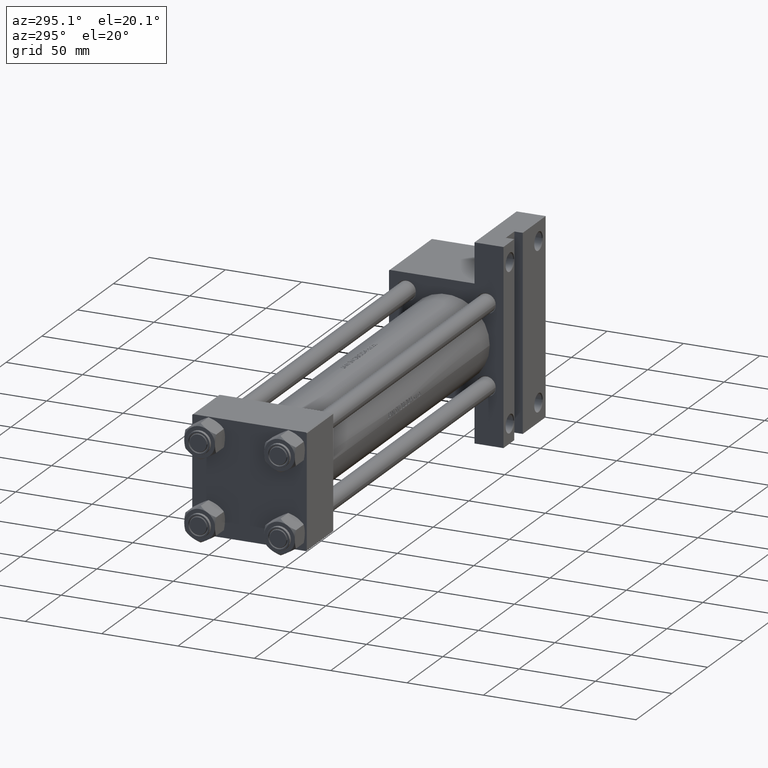
[diagram: clean part render]
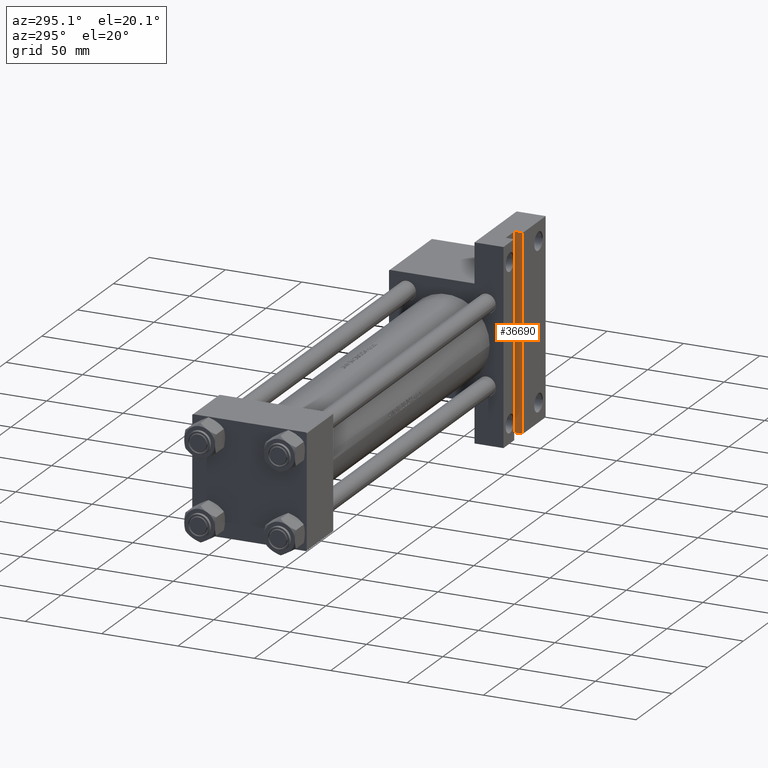
[diagram: same view with one face highlighted and labeled with its STEP entity id]
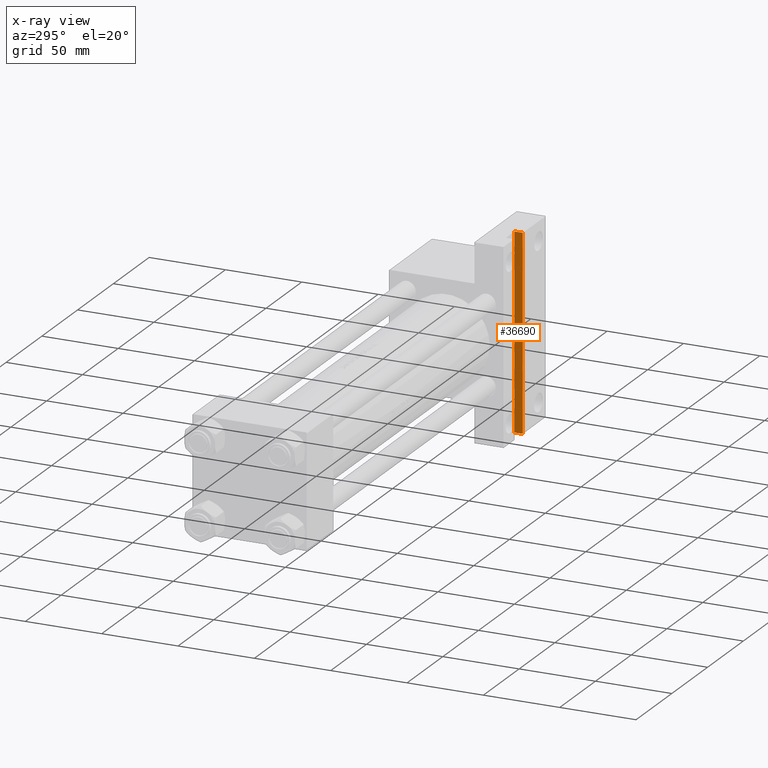
[diagram: x-ray of the same camera — body ghosted, the highlighted face saturated]
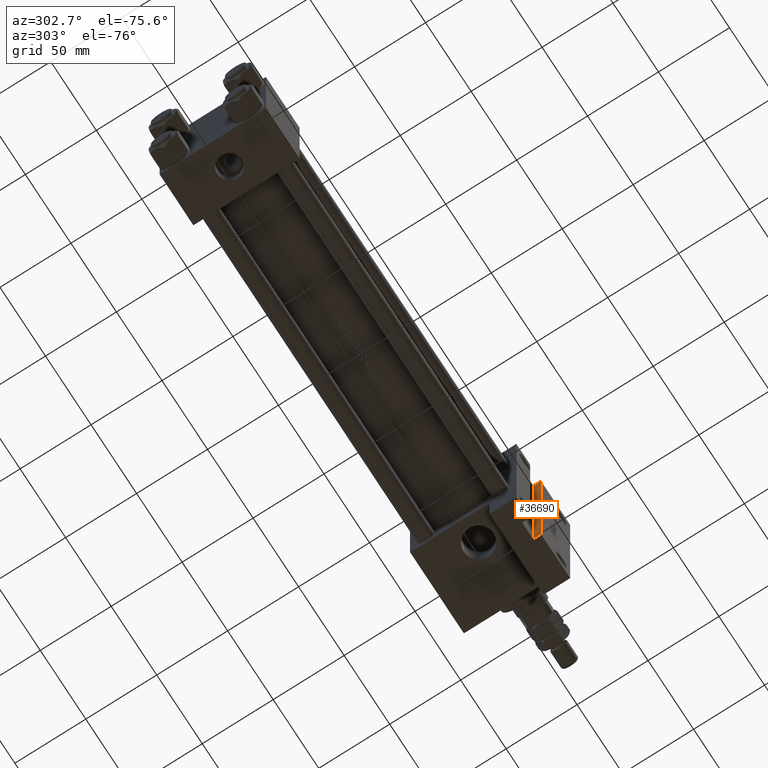
[diagram: same view with one face highlighted and labeled with its STEP entity id]
A machine part, auxiliary view. The second image highlights one B-rep face of the part: STEP entity #36690.
The next image is the same camera in x-ray: the body ghosted, the highlighted face saturated — about 0% of this face is hidden behind the body in this view.
A second angle (auxiliary view) of the same face is appended — the face is thin or edge-on in the first view.
In plain terms, the highlighted planar face has unit normal (1, 0, 0).
Its self-contained STEP definition (entity closure, byte-faithful):
#4731 = DIRECTION ( 'NONE',  ( -0.000000000000000000, -1.000000000000000000, -0.000000000000000000 ) ) ;
#4846 = FACE_OUTER_BOUND ( 'NONE', #22344, .T. ) ;
#8443 = LINE ( 'NONE', #20382, #13829 ) ;
#8484 = VERTEX_POINT ( 'NONE', #38813 ) ;
#10061 = AXIS2_PLACEMENT_3D ( 'NONE', #46632, #22567, #43131 ) ;
#10926 = EDGE_CURVE ( 'NONE', #19129, #8484, #15275, .T. ) ;
#13829 = VECTOR ( 'NONE', #4731, 1000.000000000000000 ) ;
#15275 = LINE ( 'NONE', #18528, #43324 ) ;
#16521 = PLANE ( 'NONE',  #10061 ) ;
#18528 = CARTESIAN_POINT ( 'NONE',  ( 302.0000000000000000, 63.49999999999997158, -32.00000000000000000 ) ) ;
#18998 = ORIENTED_EDGE ( 'NONE', *, *, #28079, .F. ) ;
#19129 = VERTEX_POINT ( 'NONE', #45219 ) ;
#20288 = DIRECTION ( 'NONE',  ( -0.000000000000000000, -0.000000000000000000, -1.000000000000000000 ) ) ;
#20382 = CARTESIAN_POINT ( 'NONE',  ( 302.0000000000000000, -63.49999999999997158, -37.50000000000000000 ) ) ;
#20484 = ORIENTED_EDGE ( 'NONE', *, *, #10926, .T. ) ;
#21625 = LINE ( 'NONE', #33084, #48719 ) ;
#22344 = EDGE_LOOP ( 'NONE', ( #45903, #43866, #18998, #20484 ) ) ;
#22567 = DIRECTION ( 'NONE',  ( 1.000000000000000000, 0.000000000000000000, 0.000000000000000000 ) ) ;
#24728 = VERTEX_POINT ( 'NONE', #48351 ) ;
#25134 = DIRECTION ( 'NONE',  ( -0.000000000000000000, -1.000000000000000000, -0.000000000000000000 ) ) ;
#26442 = VECTOR ( 'NONE', #20288, 1000.000000000000000 ) ;
#27302 = EDGE_CURVE ( 'NONE', #41751, #24728, #43171, .T. ) ;
#28079 = EDGE_CURVE ( 'NONE', #19129, #41751, #21625, .T. ) ;
#29813 = EDGE_CURVE ( 'NONE', #8484, #24728, #8443, .T. ) ;
#30208 = DIRECTION ( 'NONE',  ( -0.000000000000000000, -0.000000000000000000, -1.000000000000000000 ) ) ;
#33084 = CARTESIAN_POINT ( 'NONE',  ( 302.0000000000000000, -63.49999999999997158, -32.00000000000000000 ) ) ;
#35108 = CARTESIAN_POINT ( 'NONE',  ( 301.9999999999999432, -63.50000000000002842, -32.00000000000000000 ) ) ;
#36690 = ADVANCED_FACE ( 'NONE', ( #4846 ), #16521, .F. ) ;
#38702 = CARTESIAN_POINT ( 'NONE',  ( 302.0000000000000000, -63.49999999999997158, -32.00000000000000000 ) ) ;
#38813 = CARTESIAN_POINT ( 'NONE',  ( 302.0000000000000000, 63.49999999999997158, -37.50000000000000000 ) ) ;
#41751 = VERTEX_POINT ( 'NONE', #35108 ) ;
#43131 = DIRECTION ( 'NONE',  ( 0.000000000000000000, 0.000000000000000000, -1.000000000000000000 ) ) ;
#43171 = LINE ( 'NONE', #38702, #26442 ) ;
#43324 = VECTOR ( 'NONE', #30208, 1000.000000000000000 ) ;
#43866 = ORIENTED_EDGE ( 'NONE', *, *, #27302, .F. ) ;
#45219 = CARTESIAN_POINT ( 'NONE',  ( 302.0000000000000000, 63.49999999999997158, -32.00000000000000000 ) ) ;
#45903 = ORIENTED_EDGE ( 'NONE', *, *, #29813, .T. ) ;
#46632 = CARTESIAN_POINT ( 'NONE',  ( 302.0000000000000000, -63.49999999999997158, -32.00000000000000000 ) ) ;
#48351 = CARTESIAN_POINT ( 'NONE',  ( 302.0000000000000000, -63.49999999999997158, -37.50000000000000000 ) ) ;
#48719 = VECTOR ( 'NONE', #25134, 1000.000000000000000 ) ;